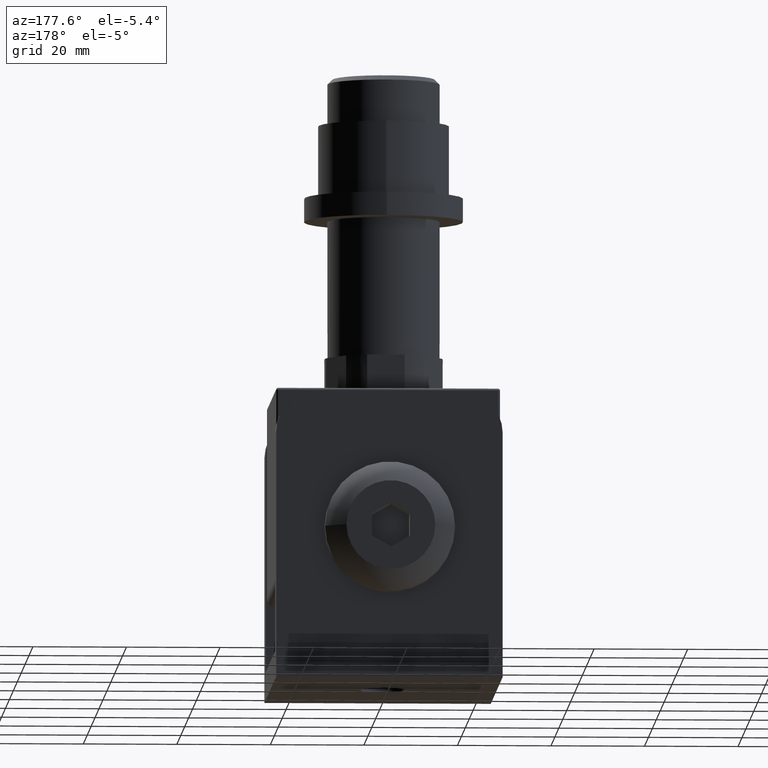
[diagram: clean part render]
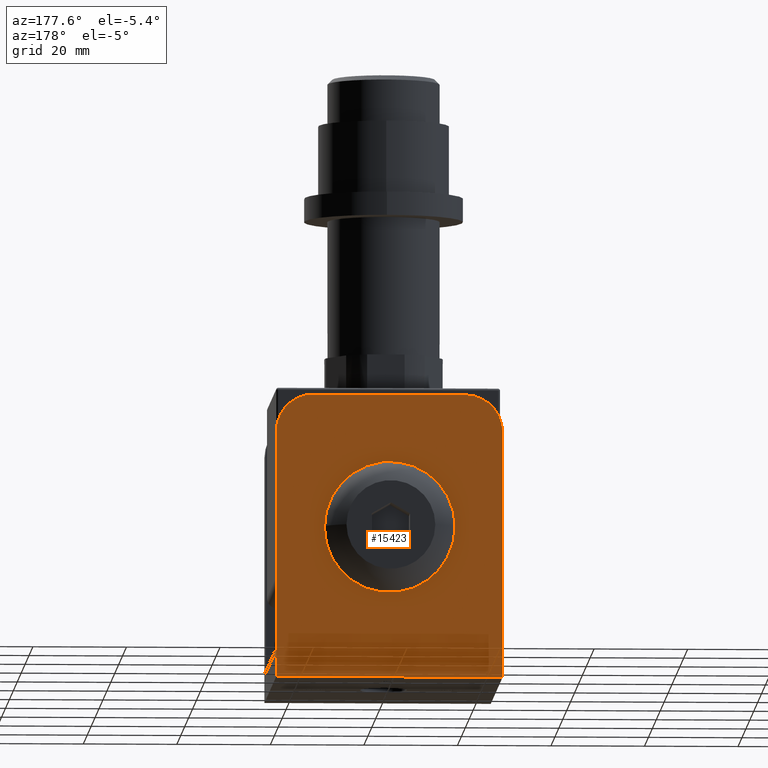
[diagram: same view with one face highlighted and labeled with its STEP entity id]
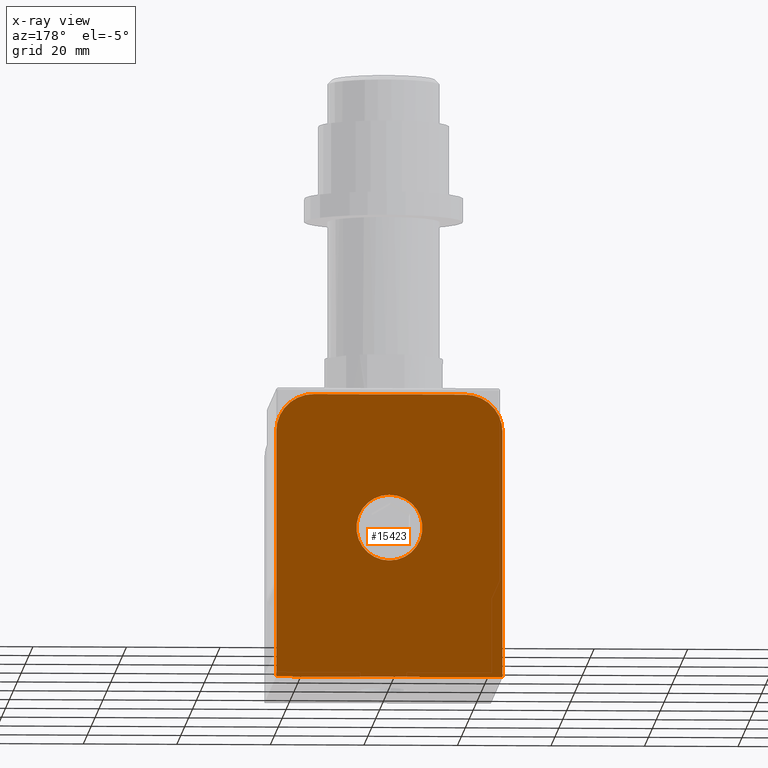
[diagram: x-ray of the same camera — body ghosted, the highlighted face saturated]
A machine part, auxiliary view. The second image highlights one B-rep face of the part: STEP entity #15423.
The next image is the same camera in x-ray: the body ghosted, the highlighted face saturated — about 0% of this face is hidden behind the body in this view.
In plain terms, the highlighted planar face has unit normal (0, -1, -0).
Its self-contained STEP definition (entity closure, byte-faithful):
#150 = EDGE_CURVE ( 'NONE', #1116, #15404, #1818, .T. ) ;
#437 = CARTESIAN_POINT ( 'NONE',  ( -16.19999999999999929, 30.19999999999999574, 30.30000000000000426 ) ) ;
#1116 = VERTEX_POINT ( 'NONE', #6418 ) ;
#1568 = ORIENTED_EDGE ( 'NONE', *, *, #8981, .F. ) ;
#1679 = PLANE ( 'NONE',  #11782 ) ;
#1713 = CARTESIAN_POINT ( 'NONE',  ( 24.19999999999999929, 30.20000000000000284, -30.30000000000000426 ) ) ;
#1818 = LINE ( 'NONE', #9173, #7477 ) ;
#1878 = EDGE_CURVE ( 'NONE', #5461, #15648, #11239, .T. ) ;
#2749 = VECTOR ( 'NONE', #15462, 1000.000000000000000 ) ;
#2870 = DIRECTION ( 'NONE',  ( 0.000000000000000000, -1.000000000000000000, -1.145031997344426992E-16 ) ) ;
#2884 = ORIENTED_EDGE ( 'NONE', *, *, #5347, .T. ) ;
#3059 = CIRCLE ( 'NONE', #13216, 8.000000000000000000 ) ;
#3801 = CARTESIAN_POINT ( 'NONE',  ( -24.19999999999999929, 30.19999999999999574, 22.30000000000000426 ) ) ;
#4018 = DIRECTION ( 'NONE',  ( -0.000000000000000000, -1.145031997344426992E-16, 1.000000000000000000 ) ) ;
#4086 = CARTESIAN_POINT ( 'NONE',  ( 24.19999999999999929, 30.19999999999999574, 30.30000000000000426 ) ) ;
#4172 = EDGE_CURVE ( 'NONE', #12738, #15404, #8726, .T. ) ;
#4324 = DIRECTION ( 'NONE',  ( -0.000000000000000000, 1.000000000000000000, 1.145031997344426992E-16 ) ) ;
#4333 = ORIENTED_EDGE ( 'NONE', *, *, #1878, .F. ) ;
#4375 = EDGE_CURVE ( 'NONE', #1116, #15648, #3059, .T. ) ;
#4504 = CARTESIAN_POINT ( 'NONE',  ( -24.19999999999999929, 30.20000000000000284, -30.30000000000000426 ) ) ;
#4571 = EDGE_LOOP ( 'NONE', ( #1568 ) ) ;
#5145 = AXIS2_PLACEMENT_3D ( 'NONE', #5581, #8182, #9402 ) ;
#5308 = DIRECTION ( 'NONE',  ( 0.000000000000000000, 1.145031997344426992E-16, -1.000000000000000000 ) ) ;
#5347 = EDGE_CURVE ( 'NONE', #5461, #12092, #10006, .T. ) ;
#5461 = VERTEX_POINT ( 'NONE', #1713 ) ;
#5581 = CARTESIAN_POINT ( 'NONE',  ( -16.19999999999999929, 30.19999999999999574, 22.30000000000000426 ) ) ;
#6073 = EDGE_LOOP ( 'NONE', ( #14873, #6152, #4333, #2884, #14278, #15435 ) ) ;
#6152 = ORIENTED_EDGE ( 'NONE', *, *, #4375, .T. ) ;
#6418 = CARTESIAN_POINT ( 'NONE',  ( 16.19999999999999929, 30.19999999999999574, 30.30000000000000426 ) ) ;
#7409 = FACE_OUTER_BOUND ( 'NONE', #6073, .T. ) ;
#7477 = VECTOR ( 'NONE', #15403, 1000.000000000000000 ) ;
#7487 = CARTESIAN_POINT ( 'NONE',  ( 0.000000000000000000, 30.19999999999999929, 8.749999999999998224 ) ) ;
#7588 = VERTEX_POINT ( 'NONE', #7487 ) ;
#7739 = CARTESIAN_POINT ( 'NONE',  ( 16.19999999999999929, 30.19999999999999574, 22.30000000000000426 ) ) ;
#8003 = CARTESIAN_POINT ( 'NONE',  ( 24.19999999999999929, 30.19999999999999574, 22.30000000000000426 ) ) ;
#8182 = DIRECTION ( 'NONE',  ( -0.000000000000000000, 1.000000000000000000, 1.145031997344426992E-16 ) ) ;
#8726 = CIRCLE ( 'NONE', #5145, 8.000000000000000000 ) ;
#8952 = CARTESIAN_POINT ( 'NONE',  ( 24.19999999999999929, 30.20000000000000284, -30.30000000000000426 ) ) ;
#8981 = EDGE_CURVE ( 'NONE', #7588, #7588, #13837, .T. ) ;
#9173 = CARTESIAN_POINT ( 'NONE',  ( 24.19999999999999929, 30.19999999999999574, 30.30000000000000426 ) ) ;
#9402 = DIRECTION ( 'NONE',  ( 0.000000000000000000, 0.000000000000000000, -1.000000000000000000 ) ) ;
#10006 = LINE ( 'NONE', #8952, #13798 ) ;
#10043 = CARTESIAN_POINT ( 'NONE',  ( -24.19999999999999929, 30.19999999999999574, 30.30000000000000426 ) ) ;
#10150 = DIRECTION ( 'NONE',  ( 0.000000000000000000, 0.000000000000000000, -1.000000000000000000 ) ) ;
#10565 = FACE_BOUND ( 'NONE', #4571, .T. ) ;
#10667 = CARTESIAN_POINT ( 'NONE',  ( 0.000000000000000000, 30.19999999999999929, 1.699999999999996625 ) ) ;
#11239 = LINE ( 'NONE', #11762, #2749 ) ;
#11762 = CARTESIAN_POINT ( 'NONE',  ( 24.19999999999999929, 30.19999999999999574, 30.30000000000000426 ) ) ;
#11782 = AXIS2_PLACEMENT_3D ( 'NONE', #4086, #2870, #5308 ) ;
#11791 = DIRECTION ( 'NONE',  ( 0.000000000000000000, 1.000000000000000000, 1.101411730778924924E-16 ) ) ;
#11952 = EDGE_CURVE ( 'NONE', #12092, #12738, #14824, .T. ) ;
#12092 = VERTEX_POINT ( 'NONE', #4504 ) ;
#12658 = DIRECTION ( 'NONE',  ( -1.000000000000000000, -0.000000000000000000, -0.000000000000000000 ) ) ;
#12738 = VERTEX_POINT ( 'NONE', #3801 ) ;
#12935 = VECTOR ( 'NONE', #4018, 1000.000000000000000 ) ;
#13124 = DIRECTION ( 'NONE',  ( 0.000000000000000000, 0.000000000000000000, 1.000000000000000000 ) ) ;
#13216 = AXIS2_PLACEMENT_3D ( 'NONE', #7739, #4324, #10150 ) ;
#13798 = VECTOR ( 'NONE', #12658, 1000.000000000000000 ) ;
#13837 = CIRCLE ( 'NONE', #15245, 7.050000000000000711 ) ;
#14278 = ORIENTED_EDGE ( 'NONE', *, *, #11952, .T. ) ;
#14824 = LINE ( 'NONE', #10043, #12935 ) ;
#14873 = ORIENTED_EDGE ( 'NONE', *, *, #150, .F. ) ;
#15245 = AXIS2_PLACEMENT_3D ( 'NONE', #10667, #11791, #13124 ) ;
#15403 = DIRECTION ( 'NONE',  ( -1.000000000000000000, -0.000000000000000000, -0.000000000000000000 ) ) ;
#15404 = VERTEX_POINT ( 'NONE', #437 ) ;
#15423 = ADVANCED_FACE ( 'NONE', ( #10565, #7409 ), #1679, .F. ) ;
#15435 = ORIENTED_EDGE ( 'NONE', *, *, #4172, .T. ) ;
#15462 = DIRECTION ( 'NONE',  ( -0.000000000000000000, -1.145031997344426992E-16, 1.000000000000000000 ) ) ;
#15648 = VERTEX_POINT ( 'NONE', #8003 ) ;